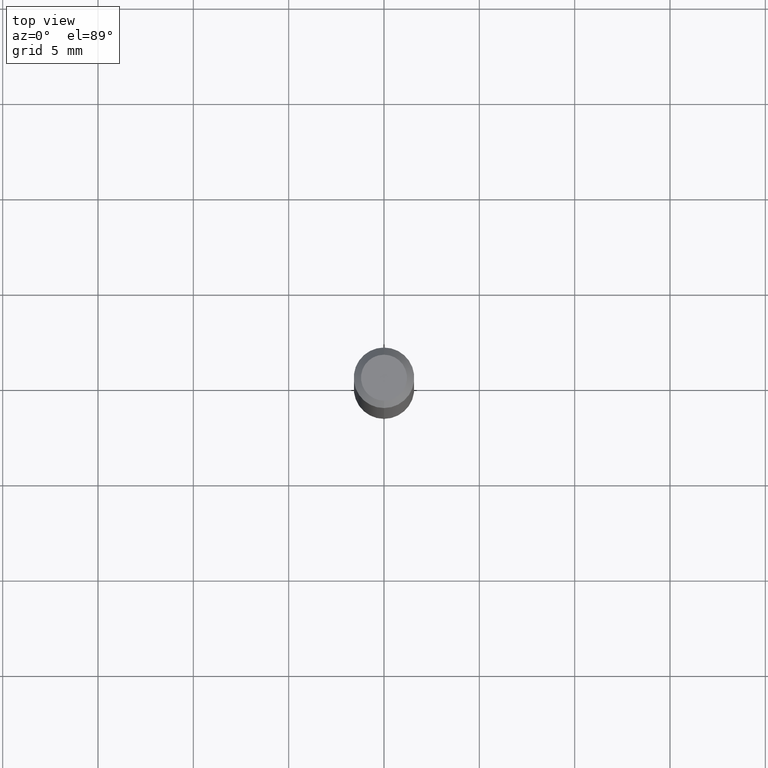
[diagram: clean part render]
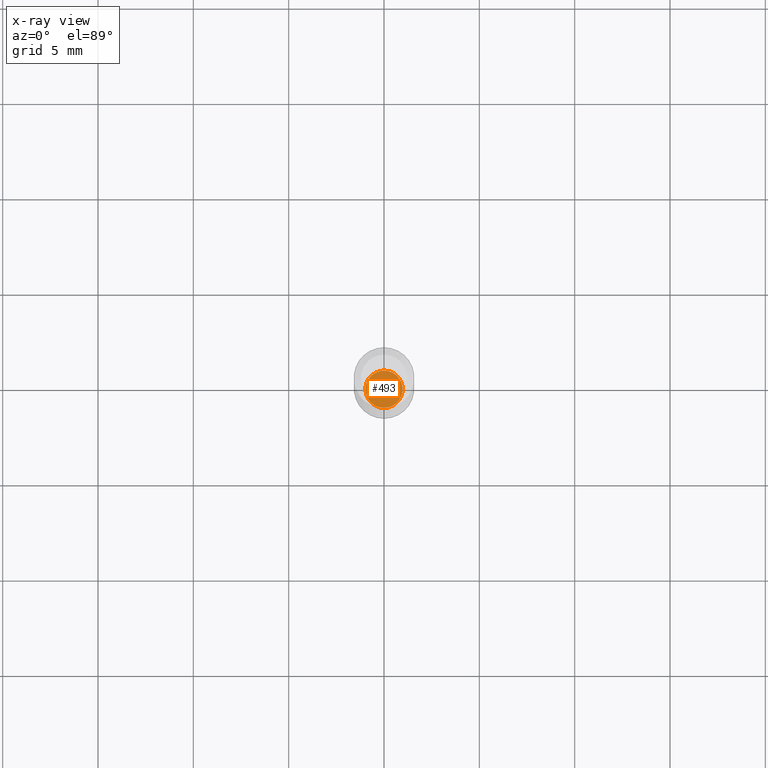
[diagram: x-ray — body ghosted, one internal face saturated and labeled with its STEP entity id]
A machine part, top view, then the same camera in x-ray: the body is ghosted and one INTERNAL B-rep face — a face not visible from any outside direction — is saturated and labeled: STEP entity #493.
In plain terms, the highlighted planar face has unit normal (-0, 0, 1).
Its self-contained STEP definition (entity closure, byte-faithful):
#5 = EDGE_LOOP ( 'NONE', ( #332, #323 ) ) ;
#8 = AXIS2_PLACEMENT_3D ( 'NONE', #468, #373, #40 ) ;
#40 = DIRECTION ( 'NONE',  ( -6.982962677686266711E-15, -1.000000000000000000, 0.000000000000000000 ) ) ;
#74 = CARTESIAN_POINT ( 'NONE',  ( 3.382041935942577567E-29, -4.828778011730146213E-15, -1.383000000000000451 ) ) ;
#111 = DIRECTION ( 'NONE',  ( -6.982962677686266711E-15, -1.000000000000000000, 0.000000000000000000 ) ) ;
#140 = CARTESIAN_POINT ( 'NONE',  ( -2.688440630908873907E-16, -0.03850000000000482897, -1.383000000000000451 ) ) ;
#147 = CARTESIAN_POINT ( 'NONE',  ( 3.382041935942577567E-29, -4.828778011730146213E-15, -1.383000000000000451 ) ) ;
#156 = PLANE ( 'NONE',  #258 ) ;
#161 = DIRECTION ( 'NONE',  ( -2.445438854622252545E-29, 3.491524231185932081E-15, 1.000000000000000000 ) ) ;
#192 = DIRECTION ( 'NONE',  ( -6.982962677686265922E-15, -1.000000000000000000, 3.491524231185932081E-15 ) ) ;
#238 = CIRCLE ( 'NONE', #8, 0.03849999999999999256 ) ;
#258 = AXIS2_PLACEMENT_3D ( 'NONE', #74, #161, #192 ) ;
#260 = CARTESIAN_POINT ( 'NONE',  ( 2.753353101070732341E-16, 0.03849999999999516309, -1.383000000000000451 ) ) ;
#265 = AXIS2_PLACEMENT_3D ( 'NONE', #147, #460, #111 ) ;
#279 = EDGE_CURVE ( 'NONE', #471, #480, #366, .T. ) ;
#323 = ORIENTED_EDGE ( 'NONE', *, *, #454, .F. ) ;
#332 = ORIENTED_EDGE ( 'NONE', *, *, #279, .F. ) ;
#366 = CIRCLE ( 'NONE', #265, 0.03849999999999999256 ) ;
#373 = DIRECTION ( 'NONE',  ( -2.445438854622252826E-29, 3.491524231185932081E-15, 1.000000000000000000 ) ) ;
#454 = EDGE_CURVE ( 'NONE', #480, #471, #238, .T. ) ;
#460 = DIRECTION ( 'NONE',  ( -2.445438854622252826E-29, 3.491524231185932081E-15, 1.000000000000000000 ) ) ;
#468 = CARTESIAN_POINT ( 'NONE',  ( 3.382041935942577567E-29, -4.828778011730146213E-15, -1.383000000000000451 ) ) ;
#471 = VERTEX_POINT ( 'NONE', #140 ) ;
#480 = VERTEX_POINT ( 'NONE', #260 ) ;
#493 = ADVANCED_FACE ( 'NONE', ( #507 ), #156, .F. ) ;
#507 = FACE_OUTER_BOUND ( 'NONE', #5, .T. ) ;